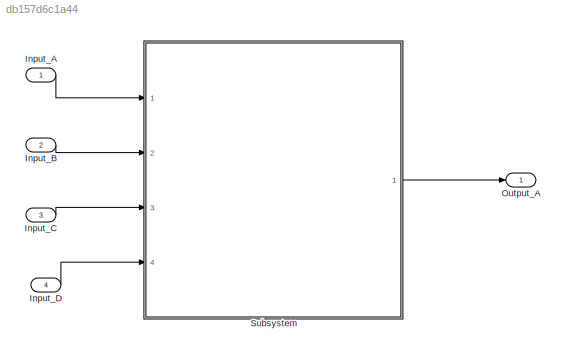
MODEL slx_db157d6c1a44
KIND model
CONFIG AbsTol = auto
CONFIG EnableMultiTasking = off
CONFIG FixedStep = auto
CONFIG MaxStep = auto
CONFIG MinStep = auto
CONFIG RelTol = 1e-3
CONFIG SampleTimeConstraint = Unconstrained
CONFIG Solver = VariableStepAuto
CONFIG SolverName = VariableStepAuto
CONFIG StartTime = 0.0
CONFIG StopTime = 10.0
BLOCK [Inport] Input_A
  IconDisplay = Port number
BLOCK [Inport] Input_B
  IconDisplay = Port number
  Port = 2
BLOCK [Inport] Input_C
  IconDisplay = Port number
  Port = 3
BLOCK [Inport] Input_D
  IconDisplay = Port number
  Port = 4
BLOCK [Outport] Output_A
  IconDisplay = Port number
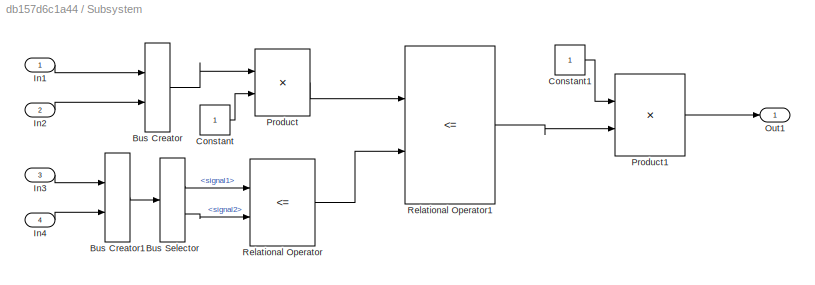
BLOCK [SubSystem] Subsystem
  Ports = [4, 1]
  RequestExecContextInheritance = off
BLOCK [BusCreator] Subsystem/Bus Creator
  DisplayOption = bar
  InheritFromInputs = on
  Inputs = 2
  Ports = [2, 1]
BLOCK [BusCreator] Subsystem/Bus Creator1
  DisplayOption = bar
  InheritFromInputs = on
  Inputs = 2
  Ports = [2, 1]
BLOCK [BusSelector] Subsystem/Bus Selector
  OutputAsBus = off
  OutputSignals = signal1,signal2
  Ports = [1, 2]
BLOCK [Constant] Subsystem/Constant
BLOCK [Constant] Subsystem/Constant1
BLOCK [Inport] Subsystem/In1
  IconDisplay = Port number
BLOCK [Inport] Subsystem/In2
  IconDisplay = Port number
  Port = 2
BLOCK [Inport] Subsystem/In3
  IconDisplay = Port number
  Port = 3
BLOCK [Inport] Subsystem/In4
  IconDisplay = Port number
  Port = 4
BLOCK [Outport] Subsystem/Out1
  IconDisplay = Port number
BLOCK [Product] Subsystem/Product
  InputSameDT = off
  OutDataTypeStr = Inherit: Inherit via internal rule
  Ports = [2, 1]
  RndMeth = Floor
  SaturateOnIntegerOverflow = off
BLOCK [Product] Subsystem/Product1
  InputSameDT = off
  OutDataTypeStr = Inherit: Inherit via internal rule
  Ports = [2, 1]
  RndMeth = Floor
  SaturateOnIntegerOverflow = off
BLOCK [RelationalOperator] Subsystem/Relational Operator
  InputSameDT = off
  Operator = <=
  OutDataTypeStr = boolean
  Ports = [2, 1]
  RndMeth = Simplest
BLOCK [RelationalOperator] Subsystem/Relational Operator1
  InputSameDT = off
  Operator = <=
  OutDataTypeStr = boolean
  Ports = [2, 1]
  RndMeth = Simplest
LINE Input_A:1 -> Subsystem:1
LINE Input_B:1 -> Subsystem:2
LINE Input_C:1 -> Subsystem:3
LINE Input_D:1 -> Subsystem:4
LINE Subsystem/Bus Creator1:1 -> Subsystem/Bus Selector:1
LINE Subsystem/Bus Creator:1 -> Subsystem/Product:1
LINE Subsystem/Bus Selector:1 -> Subsystem/Relational Operator:1
LINE Subsystem/Bus Selector:2 -> Subsystem/Relational Operator:2
LINE Subsystem/Constant1:1 -> Subsystem/Product1:1
LINE Subsystem/Constant:1 -> Subsystem/Product:2
LINE Subsystem/In1:1 -> Subsystem/Bus Creator:1
LINE Subsystem/In2:1 -> Subsystem/Bus Creator:2
LINE Subsystem/In3:1 -> Subsystem/Bus Creator1:1
LINE Subsystem/In4:1 -> Subsystem/Bus Creator1:2
LINE Subsystem/Product1:1 -> Subsystem/Out1:1
LINE Subsystem/Product:1 -> Subsystem/Relational Operator1:1
LINE Subsystem/Relational Operator1:1 -> Subsystem/Product1:2
LINE Subsystem/Relational Operator:1 -> Subsystem/Relational Operator1:2
LINE Subsystem:1 -> Output_A:1
